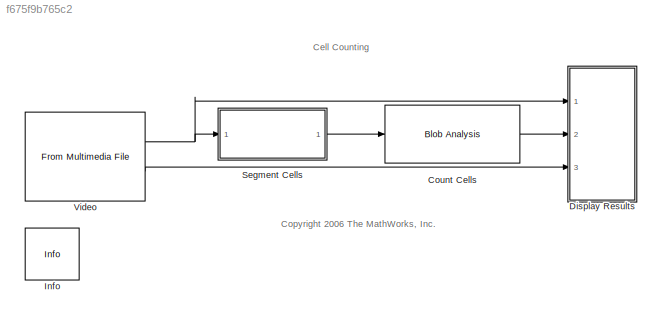
MODEL slx_f675f9b765c2
KIND model
CONFIG AbsTol = auto
CONFIG FixedStep = auto
CONFIG MaxStep = auto
CONFIG MinStep = auto
CONFIG RelTol = 1e-3
CONFIG SampleTimeConstraint = Unconstrained
CONFIG Solver = FixedStepDiscrete
CONFIG SolverMode = Auto
CONFIG SolverName = FixedStepDiscrete
CONFIG StartTime = 0.0
CONFIG StopTime = inf
BLOCK [Reference] Count Cells  REF=visionstatistics/Blob Analysis
  Ports = [1, 1]
  SourceBlock = visionstatistics/Blob Analysis
  SourceType = Blob Analysis
  Tag = vipblks_row_conv
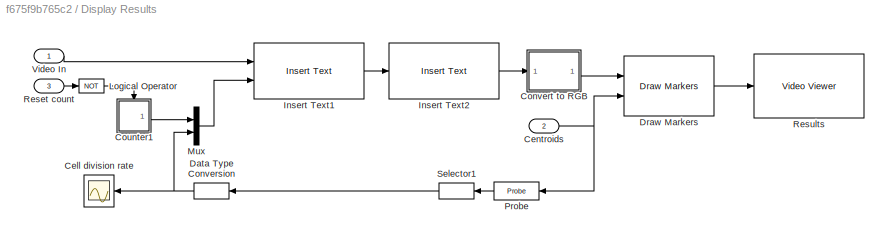
BLOCK [SubSystem] Display Results
  Ports = [3]
  RequestExecContextInheritance = off
  Variant = off
BLOCK [Scope] Display Results/Cell division rate
  Ports = [1]
  ScopeSpecificationString = Simulink.scopes.TimeScopeBlockCfg('CurrentConfiguration', extmgr.ConfigurationSet(extmgr.Configuration('Core','General UI',true),extmgr.Configuration('Core','Source UI',true),extmgr.Configuration('Sources','WiredSimulink',true,'DataLoggingVariableName','ScopeData1','DataLoggingSaveFormat','StructureWithTime','DataLoggingLimitDataPoints',true,'DataLoggingDecimation','1','DataLoggingDecimateData',tr...<+1728ch>
BLOCK [Inport] Display Results/Centroids
  IconDisplay = Port number
  Port = 2
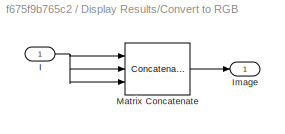
BLOCK [SubSystem] Display Results/Convert to RGB
  Ports = [1, 1]
  RequestExecContextInheritance = off
  Variant = off
BLOCK [Inport] Display Results/Convert to RGB/I
  IconDisplay = Port number
BLOCK [Outport] Display Results/Convert to RGB/Image
  IconDisplay = Port number
BLOCK [Concatenate] Display Results/Convert to RGB/Matrix Concatenate
  ConcatenateDimension = 3
  Mode = Multidimensional array
  NumInputs = 3
  Ports = [3, 1]
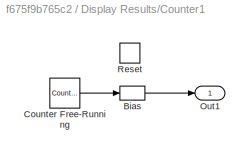
BLOCK [SubSystem] Display Results/Counter1
  Ports = [0, 1, 1]
  RequestExecContextInheritance = off
  TreatAsAtomicUnit = on
  Variant = off
BLOCK [Bias] Display Results/Counter1/Bias
  Bias = 1
  SaturateOnIntegerOverflow = off
BLOCK [Reference] Display Results/Counter1/Counter Free-Running  REF=simulink/Sources/Counter
Free-Running
  Ports = [0, 1]
  SourceBlock = simulink/Sources/Counter\nFree-Running
  SourceType = Counter Free-Running
BLOCK [Outport] Display Results/Counter1/Out1
  IconDisplay = Port number
BLOCK [EnablePort] Display Results/Counter1/Reset
  Ports = []
  StatesWhenEnabling = reset
BLOCK [DataTypeConversion] Display Results/Data Type Conversion
  OutDataTypeStr = uint16
  RndMeth = Floor
  SaturateOnIntegerOverflow = off
BLOCK [Reference] Display Results/Draw Markers  REF=visiontextngfix/Draw Markers
  Ports = [2, 1]
  SourceBlock = visiontextngfix/Draw Markers
  SourceType = Draw Markers
BLOCK [Reference] Display Results/Insert Text1  REF=visiontextngfix/Insert Text
  Ports = [2, 1]
  SourceBlock = visiontextngfix/Insert Text
  SourceType = Insert Text
BLOCK [Reference] Display Results/Insert Text2  REF=visiontextngfix/Insert Text
  Ports = [1, 1]
  SourceBlock = visiontextngfix/Insert Text
  SourceType = Insert Text
BLOCK [Logic] Display Results/Logical Operator
  AllPortsSameDT = off
  Operator = NOT
  OutDataTypeStr = boolean
  Ports = [1, 1]
BLOCK [Mux] Display Results/Mux
  DisplayOption = bar
  Inputs = 2
  Ports = [2, 1]
BLOCK [Probe] Display Results/Probe
  Ports = [1, 1]
  ProbeComplexSignal = off
  ProbeSampleTime = off
  ProbeSignalDimensions = on
  ProbeWidth = off
  ProbeWidthDataType = uint8
BLOCK [Inport] Display Results/Reset count
  IconDisplay = Port number
  Port = 3
BLOCK [Reference] Display Results/Results  REF=visionsinks/Video Viewer
  Ports = [1]
  SourceBlock = visionsinks/Video Viewer
  SourceType = Video Viewer
  UserDataPersistent = on
BLOCK [Selector] Display Results/Selector1
  IndexOptions = Index vector (dialog),Index vector (dialog)
  Indices = 1,1
  InputPortWidth = 3
  NumberOfDimensions = 2
  OutputSizes = 99,1
  Ports = [1, 1]
BLOCK [Inport] Display Results/Video In
  IconDisplay = Port number
BLOCK [Reference] Info  REF=vipmisc/Info
  Ports = []
  SourceBlock = vipmisc/Info
  SourceType = Info
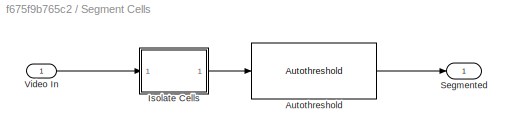
BLOCK [SubSystem] Segment Cells
  Ports = [1, 1]
  RequestExecContextInheritance = off
  Variant = off
BLOCK [Reference] Segment Cells/Autothreshold  REF=visionconversions/Autothreshold
  Ports = [1, 1]
  SourceBlock = visionconversions/Autothreshold
  SourceType = Autothreshold
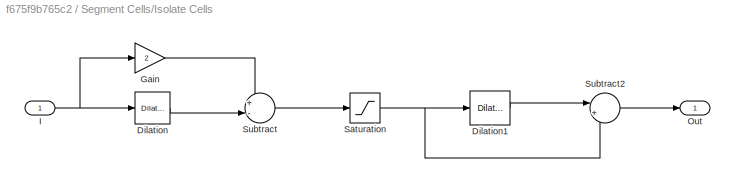
BLOCK [SubSystem] Segment Cells/Isolate Cells
  Ports = [1, 1]
  RequestExecContextInheritance = off
  Variant = off
BLOCK [Reference] Segment Cells/Isolate Cells/Dilation  REF=visionmorphops/Dilation
  Ports = [1, 1]
  SourceBlock = visionmorphops/Dilation
  SourceType = Dilation
BLOCK [Reference] Segment Cells/Isolate Cells/Dilation1  REF=visionmorphops/Dilation
  Ports = [1, 1]
  SourceBlock = visionmorphops/Dilation
  SourceType = Dilation
BLOCK [Gain] Segment Cells/Isolate Cells/Gain
  Gain = 2
  OutDataTypeStr = Inherit: Inherit via internal rule
  ParamDataTypeStr = Inherit: Inherit via internal rule
  SaturateOnIntegerOverflow = off
BLOCK [Inport] Segment Cells/Isolate Cells/I
  IconDisplay = Port number
BLOCK [Outport] Segment Cells/Isolate Cells/Out
  IconDisplay = Port number
BLOCK [Saturate] Segment Cells/Isolate Cells/Saturation
  InputPortMap = u0
  LowerLimit = 0
  Ports = [1, 1]
  UpperLimit = 1
BLOCK [Sum] Segment Cells/Isolate Cells/Subtract
  IconShape = round
  InputSameDT = off
  Inputs = +-|
  OutDataTypeStr = Inherit: Inherit via internal rule
  Ports = [2, 1]
BLOCK [Sum] Segment Cells/Isolate Cells/Subtract2
  IconShape = round
  InputSameDT = off
  Inputs = |+-
  OutDataTypeStr = Inherit: Inherit via internal rule
  Ports = [2, 1]
BLOCK [Outport] Segment Cells/Segmented
  IconDisplay = Port number
BLOCK [Inport] Segment Cells/Video In
  IconDisplay = Port number
BLOCK [Reference] Video  REF=dspvision/From Multimedia File
  Ports = [0, 2]
  SourceBlock = dspvision/From Multimedia File
  SourceType = From Multimedia File
ANNOTATION (root): Cell Counting
ANNOTATION (root): <copyright redacted>
LINE Count Cells:1 -> Display Results:2
NET Display Results/Centroids:1 -> Display Results/Draw Markers:2, Display Results/Probe:1
NET Display Results/Convert to RGB/I:1 -> Display Results/Convert to RGB/Matrix Concatenate:1, Display Results/Convert to RGB/Matrix Concatenate:2, Display Results/Convert to RGB/Matrix Concatenate:3
LINE Display Results/Convert to RGB/Matrix Concatenate:1 -> Display Results/Convert to RGB/Image:1
LINE Display Results/Convert to RGB:1 -> Display Results/Draw Markers:1
LINE Display Results/Counter1/Bias:1 -> Display Results/Counter1/Out1:1
LINE Display Results/Counter1/Counter Free-Running:1 -> Display Results/Counter1/Bias:1
LINE Display Results/Counter1:1 -> Display Results/Mux:1
NET Display Results/Data Type Conversion:1 -> Display Results/Cell division rate:1, Display Results/Mux:2
LINE Display Results/Draw Markers:1 -> Display Results/Results:1
LINE Display Results/Insert Text1:1 -> Display Results/Insert Text2:1
LINE Display Results/Insert Text2:1 -> Display Results/Convert to RGB:1
LINE Display Results/Logical Operator:1 -> Display Results/Counter1:enable
LINE Display Results/Mux:1 -> Display Results/Insert Text1:2
LINE Display Results/Probe:1 -> Display Results/Selector1:1
LINE Display Results/Reset count:1 -> Display Results/Logical Operator:1
LINE Display Results/Selector1:1 -> Display Results/Data Type Conversion:1
LINE Display Results/Video In:1 -> Display Results/Insert Text1:1
LINE Segment Cells/Autothreshold:1 -> Segment Cells/Segmented:1
LINE Segment Cells/Isolate Cells/Dilation1:1 -> Segment Cells/Isolate Cells/Subtract2:1
LINE Segment Cells/Isolate Cells/Dilation:1 -> Segment Cells/Isolate Cells/Subtract:2
LINE Segment Cells/Isolate Cells/Gain:1 -> Segment Cells/Isolate Cells/Subtract:1
NET Segment Cells/Isolate Cells/I:1 -> Segment Cells/Isolate Cells/Dilation:1, Segment Cells/Isolate Cells/Gain:1
NET Segment Cells/Isolate Cells/Saturation:1 -> Segment Cells/Isolate Cells/Dilation1:1, Segment Cells/Isolate Cells/Subtract2:2
LINE Segment Cells/Isolate Cells/Subtract2:1 -> Segment Cells/Isolate Cells/Out:1
LINE Segment Cells/Isolate Cells/Subtract:1 -> Segment Cells/Isolate Cells/Saturation:1
LINE Segment Cells/Isolate Cells:1 -> Segment Cells/Autothreshold:1
LINE Segment Cells/Video In:1 -> Segment Cells/Isolate Cells:1
LINE Segment Cells:1 -> Count Cells:1
NET Video:1 -> Display Results:1, Segment Cells:1
LINE Video:2 -> Display Results:3
note: NET lines group one-source signal fan-out (src -> all destinations, sorted); 1:1 wires keep LINE
